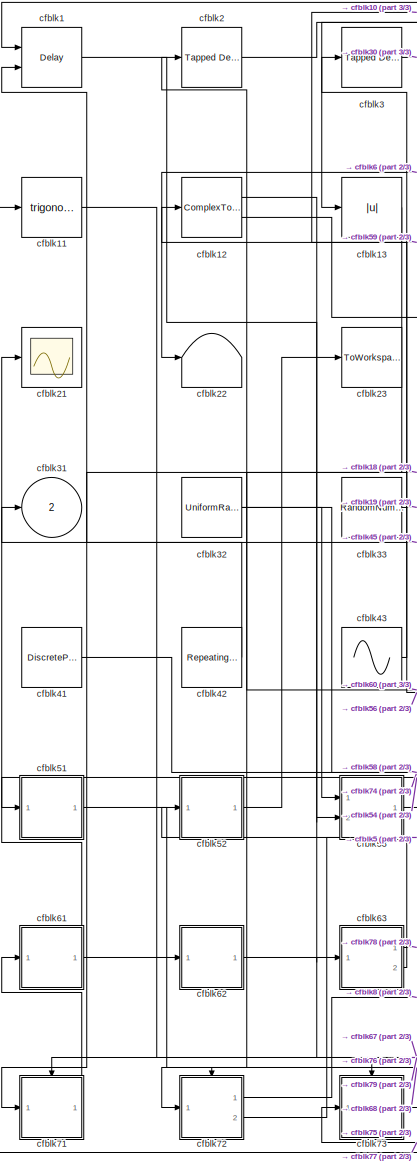
[diagram: root canvas - part 1/3, left side, full height]
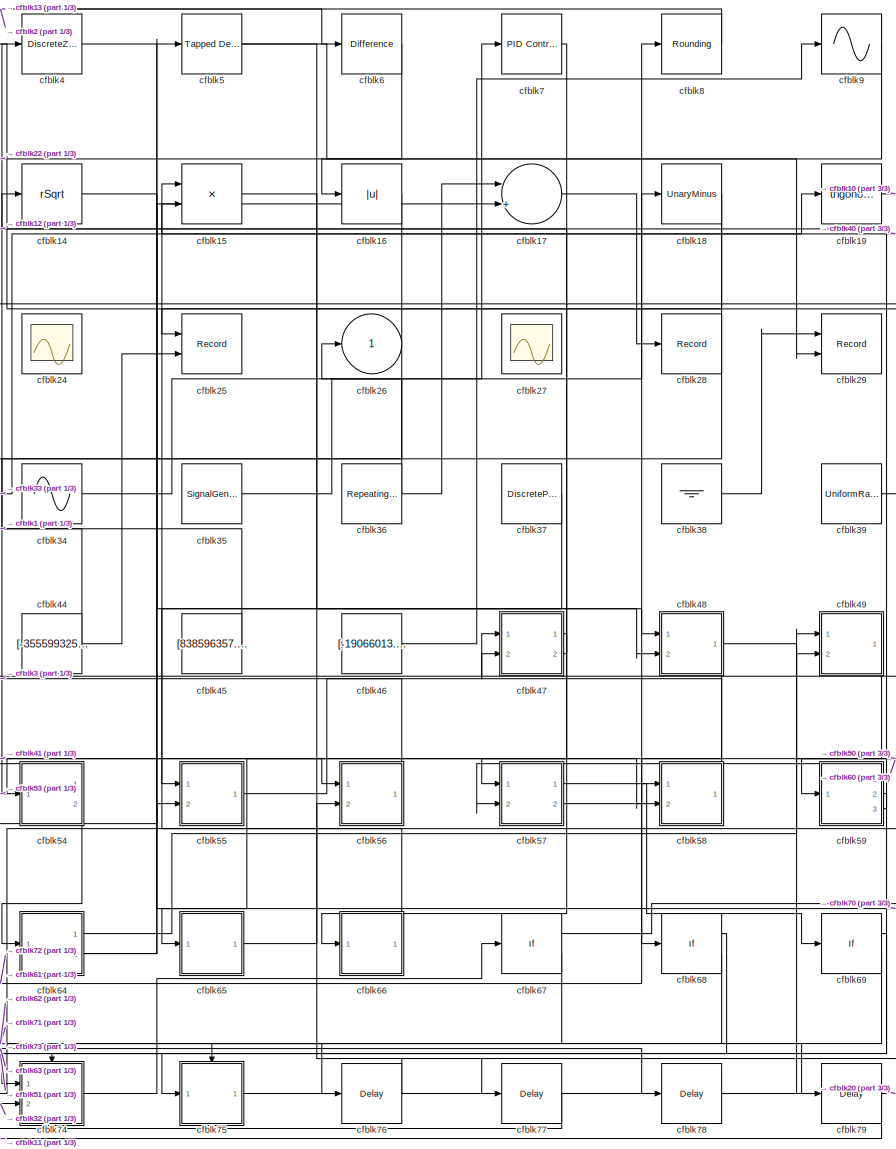
[diagram: root canvas - part 2/3, center side, full height]
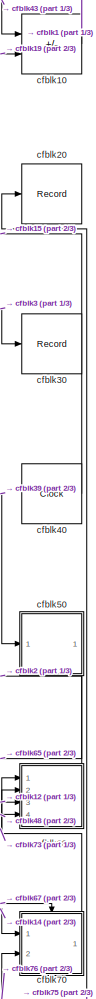
[diagram: root canvas - part 3/3, right side, full height]
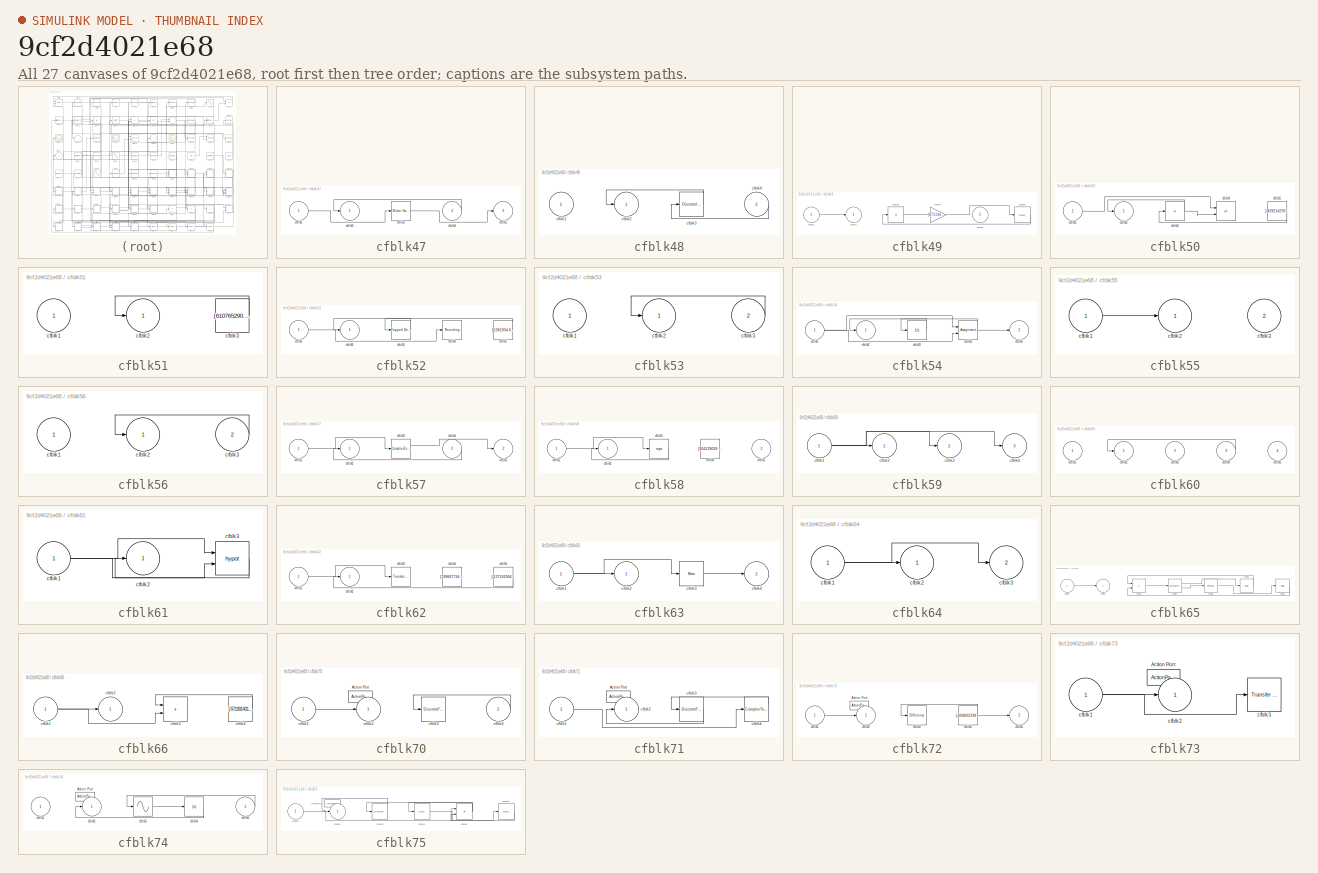
[diagram: thumbnail index - all 27 canvases of the model, root first then tree order]
MODEL slx_9cf2d4021e68
KIND model
CONFIG AbsTol = auto
CONFIG EnableMultiTasking = off
CONFIG FixedStep = auto
CONFIG MaxStep = auto
CONFIG MinStep = auto
CONFIG RelTol = 1e-3
CONFIG SampleTimeConstraint = Unconstrained
CONFIG SolverName = VariableStepAuto
CONFIG StartTime = 0.0
CONFIG StopTime = 10.0
BLOCK [Delay] cfblk1
  DelayLengthSource = Input port
  InputPortMap = u0,p1
  Ports = [2, 1]
  SampleTime = 1
BLOCK [Sum] cfblk10
  IconShape = rectangular
  Inputs = -+
  Ports = [2, 1]
BLOCK [Trigonometry] cfblk11
  Ports = [1, 1]
BLOCK [ComplexToMagnitudeAngle] cfblk12
  Ports = [1, 2]
BLOCK [Abs] cfblk13
  SaturateOnIntegerOverflow = off
BLOCK [Sqrt] cfblk14
  AlgorithmType = Newton-Raphson
  Operator = rSqrt
BLOCK [Product] cfblk15
  Ports = [2, 1]
BLOCK [Abs] cfblk16
  SaturateOnIntegerOverflow = off
BLOCK [Sum] cfblk17
  Inputs = |++
  Ports = [2, 1]
BLOCK [UnaryMinus] cfblk18
BLOCK [Trigonometry] cfblk19
  Ports = [1, 1]
BLOCK [Reference] cfblk2  REF=simulink/Discrete/Tapped Delay
  Ports = [1, 1]
  SourceBlock = simulink/Discrete/Tapped Delay
  SourceProductBaseCode = SL
  SourceType = Tapped Delay Line
BLOCK [Record] cfblk20
  FileSettingsInternal = {"entries":[{"content":{"excelSettings":{"content":{},"type":"Streamout.ExcelSettings"}},"type":"Streamout.FileSettingStorage","uuid":"c47b721e-c502-495e-bc2c-23fa9a237a94"}],"packageUris":["http://schema.mathworks.com/mf0/streamout_blocks/R2020a"],"version":"1.0"}
  Ports = [1]
  SignalsInternal = {"entries":[{"content":{"signals":[{"content":{"blockPath":["sampleModel152/cfblk20"],"channel":[],"dimensions":[1],"domain":"sampleModel152/cfblk20","lineColor":"#d95319","plots":[1],"port":1,"sid":[""],"signalID":5681,"signalName":"cfblk75"},"type":"RecordBlkView.Signal","uuid":"6b29897d-ef07-458a-9e41-9e53abe459e1"}]},"type":"RecordBlkView.InputSignals","uuid":"85f72081-060a-407c-acbf-49079db1e...<+97ch>
  VisualizationBindings = {"sparklinesplugin":{"info":[{"bindingParametersList":[],"subplotID":1}]}}
BLOCK [Scope] cfblk21
  Floating = off
  NumInputPorts = 1
  Ports = [1]
BLOCK [Terminator] cfblk22
BLOCK [ToWorkspace] cfblk23
  FixptAsFi = on
  MaxDataPoints = inf
  Ports = [1]
  SampleTime = -1
  SaveFormat = Timeseries
  VariableName = hyimlsv
BLOCK [Scope] cfblk24
  Floating = on
  NumInputPorts = 1
  Ports = []
BLOCK [Record] cfblk25
  CompatibilityTag = XY
  FileSettingsInternal = {"entries":[{"content":{"excelSettings":{"content":{},"type":"Streamout.ExcelSettings"}},"type":"Streamout.FileSettingStorage","uuid":"8546e93f-715b-4185-8f36-8e6ff5d08789"}],"packageUris":["http://schema.mathworks.com/mf0/streamout_blocks/R2020a"],"version":"1.0"}
  Layout = [1 1]
  Ports = [2]
  SignalsInternal = {"entries":[{"content":{"signals":[{"content":{"blockPath":["sampleModel152/cfblk25"],"channel":[],"dimensions":[1],"domain":"sampleModel152/cfblk25","lineColor":"#a2142f","plots":[1],"port":1,"sid":[""],"signalID":5685,"signalName":"cfblk18"},"type":"RecordBlkView.Signal","uuid":"05ec31d6-fd38-4270-a47a-7922b4318d2e"},{"content":{"blockPath":["sampleModel152/cfblk25"],"channel":[],"dimensions":[1...<+383ch>
  VisualizationBindings = {"xyplotplugin":{"info":[{"series":[{"bindingParametersList":[{"parameter":"X-Axis","signalID":5685,"signalName":"cfblk18"},{"parameter":"Y-Axis","signalID":5689,"signalName":"cfblk44"}],"seriesID":2906}],"subplotID":1}]}}
BLOCK [Outport] cfblk26
BLOCK [Scope] cfblk27
  Floating = on
  NumInputPorts = 1
  Ports = []
BLOCK [Record] cfblk28
  FileSettingsInternal = {"entries":[{"content":{"excelSettings":{"content":{},"type":"Streamout.ExcelSettings"}},"type":"Streamout.FileSettingStorage","uuid":"6cacab10-1b5e-4cec-8765-deae7b2bdf96"}],"packageUris":["http://schema.mathworks.com/mf0/streamout_blocks/R2020a"],"version":"1.0"}
  Ports = [1]
  SignalsInternal = {"entries":[{"content":{"signals":[{"content":{"blockPath":["sampleModel152/cfblk28"],"channel":[],"dimensions":[1],"domain":"sampleModel152/cfblk28","lineColor":"#77ac30","plots":[1],"port":1,"sid":[""],"signalID":5693,"signalName":"cfblk17"},"type":"RecordBlkView.Signal","uuid":"22faa192-de3f-4ae5-a89c-dffad7db9273"}]},"type":"RecordBlkView.InputSignals","uuid":"bcc17e78-91b2-4c48-9e64-284fcdbe6...<+97ch>
  VisualizationBindings = {"sparklinesplugin":{"info":[{"bindingParametersList":[],"subplotID":1}]}}
BLOCK [Record] cfblk29
  CompatibilityTag = XY
  FileSettingsInternal = {"entries":[{"content":{"excelSettings":{"content":{},"type":"Streamout.ExcelSettings"}},"type":"Streamout.FileSettingStorage","uuid":"857bb119-ee54-4941-9ae6-14d668698a5d"}],"packageUris":["http://schema.mathworks.com/mf0/streamout_blocks/R2020a"],"version":"1.0"}
  Layout = [1 1]
  Ports = [2]
  SignalsInternal = {"entries":[{"content":{"signals":[{"content":{"blockPath":["sampleModel152/cfblk29"],"channel":[],"dimensions":[1],"domain":"sampleModel152/cfblk29","lineColor":"#139fff","plots":[1],"port":2,"sid":[""],"signalID":5697,"signalName":"cfblk5"},"type":"RecordBlkView.Signal","uuid":"1e2b0046-587d-4481-b4ab-f1abe963bb21"},{"content":{"blockPath":["sampleModel152/cfblk29"],"channel":[],"dimensions":[1]...<+382ch>
  VisualizationBindings = {"xyplotplugin":{"info":[{"series":[{"bindingParametersList":[{"parameter":"X-Axis","signalID":5705,"signalName":"cfblk38"},{"parameter":"Y-Axis","signalID":5697,"signalName":"cfblk5"}],"seriesID":9559}],"subplotID":1}]}}
BLOCK [Reference] cfblk3  REF=simulink/Discrete/Tapped Delay
  Ports = [1, 1]
  SourceBlock = simulink/Discrete/Tapped Delay
  SourceProductBaseCode = SL
  SourceType = Tapped Delay Line
BLOCK [Record] cfblk30
  FileSettingsInternal = {"entries":[{"content":{"excelSettings":{"content":{},"type":"Streamout.ExcelSettings"}},"type":"Streamout.FileSettingStorage","uuid":"625a1501-f71e-49e9-9740-3205468b7647"}],"packageUris":["http://schema.mathworks.com/mf0/streamout_blocks/R2020a"],"version":"1.0"}
  Ports = [1]
  SignalsInternal = {"entries":[{"content":{"signals":[{"content":{"blockPath":["sampleModel152/cfblk30"],"channel":[],"dimensions":[1],"domain":"sampleModel152/cfblk30","lineColor":"#a2142f","plots":[1],"port":1,"sid":[""],"signalID":5701,"signalName":"cfblk3"},"type":"RecordBlkView.Signal","uuid":"0052e0c4-d6db-45c4-b4ee-3624ae9909da"}]},"type":"RecordBlkView.InputSignals","uuid":"7832ecd4-22f0-4a63-9437-63c94ca3da...<+96ch>
  VisualizationBindings = {"sparklinesplugin":{"info":[{"bindingParametersList":[],"subplotID":1}]}}
BLOCK [Outport] cfblk31
  Port = 2
BLOCK [UniformRandomNumber] cfblk32
  Maximum = [2308667735.973821]
  Minimum = [-5126869105.594875]
  SampleTime = 0.1
  Seed = [47372116.000000]
BLOCK [RandomNumber] cfblk33
  Mean = [4779.321387]
  SampleTime = 0.1
  Seed = [216975092.000000]
  Variance = [11400.363844]
BLOCK [Sin] cfblk34
  Amplitude = [343828945.107933]
  Bias = [720499371.411561]
  Ports = [0, 1]
  SampleTime = 0
BLOCK [SignalGenerator] cfblk35
  Amplitude = [-851904995.807157]
  Ports = [0, 1]
  WaveForm = square
BLOCK [Reference] cfblk36  REF=simulink/Sources/Repeating
Sequence
Stair
  Ports = [0, 1]
  SourceBlock = simulink/Sources/Repeating\nSequence\nStair
  SourceProductBaseCode = SL
  SourceType = Repeating Sequence Stair
BLOCK [DiscretePulseGenerator] cfblk37
  Amplitude = [445116671.729583]
  Period = [66463313.529924]
  PhaseDelay = [3.000000]
  Ports = [0, 1]
  PulseType = Time based
  PulseWidth = 5
BLOCK [Ground] cfblk38
BLOCK [UniformRandomNumber] cfblk39
  Maximum = [8379573596.915171]
  Minimum = [-1141066484.015148]
  SampleTime = 0.1
  Seed = [96492900.000000]
BLOCK [DiscreteZeroPole] cfblk4
  Gain = 1
  Poles = [0 0.5]
BLOCK [Clock] cfblk40
BLOCK [DiscretePulseGenerator] cfblk41
  Amplitude = [-644647574.954051]
  Period = [6532110.493789]
  PhaseDelay = [6.000000]
  Ports = [0, 1]
  PulseType = Time based
  PulseWidth = 5
BLOCK [Reference] cfblk42  REF=simulink/Sources/Repeating
Sequence
Interpolated
  Ports = [0, 1]
  SourceBlock = simulink/Sources/Repeating\nSequence\nInterpolated
  SourceProductBaseCode = SL
  SourceType = Repeating Sequence Interpolated
BLOCK [Sin] cfblk43
  Amplitude = [431734842.538580]
  Bias = [-356012344.991995]
  Ports = [0, 1]
  SampleTime = 0
BLOCK [Constant] cfblk44
  SampleTime = 1
  Value = [-355599325.295961]
BLOCK [Constant] cfblk45
  SampleTime = 1
  Value = [838596357.160332]
BLOCK [Constant] cfblk46
  SampleTime = 1
  Value = [-19066013.999276]
BLOCK [SubSystem] cfblk47
  Ports = [2, 2]
  RequestExecContextInheritance = off
BLOCK [Inport] cfblk47/cfblk1
BLOCK [Outport] cfblk47/cfblk2
BLOCK [Reference] cfblk47/cfblk3  REF=simulink/Math
Operations/Slider
Gain
  Ports = [1, 1]
  SourceBlock = simulink/Math\nOperations/Slider\nGain
  SourceProductBaseCode = SL
  SourceType = Slider Gain
BLOCK [Inport] cfblk47/cfblk4
  Port = 2
BLOCK [Outport] cfblk47/cfblk5
  Port = 2
BLOCK [SubSystem] cfblk48
  Ports = [2, 1]
  RequestExecContextInheritance = off
BLOCK [Inport] cfblk48/cfblk1
BLOCK [Outport] cfblk48/cfblk2
BLOCK [DiscreteIntegrator] cfblk48/cfblk3
  ICPrevOutput = DiscIntNeverNeededParam
  ICPrevScaledInput = DiscIntNeverNeededParam
  InitialConditionSetting = Auto
  Ports = [1, 1]
BLOCK [Inport] cfblk48/cfblk4
  Port = 2
BLOCK [SubSystem] cfblk49
  Ports = [2, 1]
  RequestExecContextInheritance = off
BLOCK [Inport] cfblk49/cfblk1
BLOCK [Outport] cfblk49/cfblk2
BLOCK [Product] cfblk49/cfblk3
  Inputs = *
  Ports = [1, 1]
BLOCK [Gain] cfblk49/cfblk4
  Gain = [171144753.575778]
BLOCK [Inport] cfblk49/cfblk5
  Port = 2
BLOCK [Delay] cfblk49/cfblk6
  InputPortMap = u0
  Ports = [1, 1]
  SampleTime = 1
BLOCK [Reference] cfblk5  REF=simulink/Discrete/Tapped Delay
  Ports = [1, 1]
  SourceBlock = simulink/Discrete/Tapped Delay
  SourceProductBaseCode = SL
  SourceType = Tapped Delay Line
BLOCK [SubSystem] cfblk50
  Ports = [1, 1]
  RequestExecContextInheritance = off
BLOCK [Inport] cfblk50/cfblk1
BLOCK [Outport] cfblk50/cfblk2
BLOCK [Product] cfblk50/cfblk3
  Inputs = *
  Ports = [1, 1]
BLOCK [Sum] cfblk50/cfblk4
  IconShape = rectangular
  Inputs = +-
  Ports = [2, 1]
BLOCK [Constant] cfblk50/cfblk5
  SampleTime = 1
  Value = [-429214276.909628]
BLOCK [SubSystem] cfblk51
  Ports = [1, 1]
  RequestExecContextInheritance = off
BLOCK [Inport] cfblk51/cfblk1
BLOCK [Outport] cfblk51/cfblk2
BLOCK [Constant] cfblk51/cfblk3
  SampleTime = 1
  Value = [610765290.185896]
BLOCK [SubSystem] cfblk52
  Ports = [1, 1]
  RequestExecContextInheritance = off
BLOCK [Inport] cfblk52/cfblk1
BLOCK [Outport] cfblk52/cfblk2
BLOCK [Reference] cfblk52/cfblk3  REF=simulink/Discrete/Tapped Delay
  Ports = [1, 1]
  SourceBlock = simulink/Discrete/Tapped Delay
  SourceProductBaseCode = SL
  SourceType = Tapped Delay Line
BLOCK [Rounding] cfblk52/cfblk4
BLOCK [Constant] cfblk52/cfblk5
  SampleTime = 1
  Value = [-1361934.620793]
BLOCK [SubSystem] cfblk53
  Ports = [2, 1]
  RequestExecContextInheritance = off
BLOCK [Inport] cfblk53/cfblk1
BLOCK [Outport] cfblk53/cfblk2
BLOCK [Inport] cfblk53/cfblk3
  Port = 2
BLOCK [SubSystem] cfblk54
  Ports = [1, 2]
  RequestExecContextInheritance = off
BLOCK [Inport] cfblk54/cfblk1
BLOCK [Outport] cfblk54/cfblk2
BLOCK [UnitDelay] cfblk54/cfblk3
  HasFrameUpgradeWarning = on
BLOCK [Assignment] cfblk54/cfblk4
  DiagnosticForDimensions = Warning
  IndexOptions = Index vector (dialog)
  Indices = 1
  OutputSizes = 1
  Ports = [2, 1]
BLOCK [Outport] cfblk54/cfblk5
  Port = 2
BLOCK [SubSystem] cfblk55
  Ports = [2, 1]
  RequestExecContextInheritance = off
BLOCK [Inport] cfblk55/cfblk1
BLOCK [Outport] cfblk55/cfblk2
BLOCK [Inport] cfblk55/cfblk3
  Port = 2
BLOCK [SubSystem] cfblk56
  Ports = [2, 1]
  RequestExecContextInheritance = off
BLOCK [Inport] cfblk56/cfblk1
BLOCK [Outport] cfblk56/cfblk2
BLOCK [Inport] cfblk56/cfblk3
  Port = 2
BLOCK [SubSystem] cfblk57
  Ports = [2, 2]
  RequestExecContextInheritance = off
BLOCK [Inport] cfblk57/cfblk1
BLOCK [Outport] cfblk57/cfblk2
BLOCK [ComplexToRealImag] cfblk57/cfblk3
  Ports = [1, 2]
BLOCK [Inport] cfblk57/cfblk4
  Port = 2
BLOCK [Outport] cfblk57/cfblk5
  Port = 2
BLOCK [SubSystem] cfblk58
  Ports = [2, 1]
  RequestExecContextInheritance = off
BLOCK [Inport] cfblk58/cfblk1
BLOCK [Outport] cfblk58/cfblk2
BLOCK [Sqrt] cfblk58/cfblk3
BLOCK [Constant] cfblk58/cfblk4
  SampleTime = 1
  Value = [304129029.836607]
BLOCK [Inport] cfblk58/cfblk5
  Port = 2
BLOCK [SubSystem] cfblk59
  Ports = [1, 3]
  RequestExecContextInheritance = off
BLOCK [Inport] cfblk59/cfblk1
BLOCK [Outport] cfblk59/cfblk2
BLOCK [Outport] cfblk59/cfblk3
  Port = 2
BLOCK [Outport] cfblk59/cfblk4
  Port = 3
BLOCK [Reference] cfblk6  REF=simulink/Discrete/Difference
  Ports = [1, 1]
  SourceBlock = simulink/Discrete/Difference
  SourceProductBaseCode = SL
  SourceType = Difference
BLOCK [SubSystem] cfblk60
  Ports = [4, 1]
  RequestExecContextInheritance = off
BLOCK [Inport] cfblk60/cfblk1
BLOCK [Outport] cfblk60/cfblk2
BLOCK [Inport] cfblk60/cfblk3
  Port = 2
BLOCK [Inport] cfblk60/cfblk4
  Port = 3
BLOCK [Inport] cfblk60/cfblk5
  Port = 4
BLOCK [SubSystem] cfblk61
  Ports = [1, 1]
  RequestExecContextInheritance = off
BLOCK [Inport] cfblk61/cfblk1
BLOCK [Outport] cfblk61/cfblk2
BLOCK [Math] cfblk61/cfblk3
  Operator = hypot
  Ports = [2, 1]
BLOCK [SubSystem] cfblk62
  Ports = [1, 1]
  RequestExecContextInheritance = off
BLOCK [Inport] cfblk62/cfblk1
BLOCK [Outport] cfblk62/cfblk2
BLOCK [Reference] cfblk62/cfblk3  REF=simulink/Discrete/Transfer Fcn
Real Zero
  Ports = [1, 1]
  SourceBlock = simulink/Discrete/Transfer Fcn\nReal Zero
  SourceProductBaseCode = SL
  SourceType = Transfer Fcn Real Zero
BLOCK [Constant] cfblk62/cfblk4
  SampleTime = 1
  Value = [749667734.627183]
BLOCK [Constant] cfblk62/cfblk5
  SampleTime = 1
  Value = [-127191064.731779]
BLOCK [SubSystem] cfblk63
  Ports = [1, 2]
  RequestExecContextInheritance = off
BLOCK [Inport] cfblk63/cfblk1
BLOCK [Outport] cfblk63/cfblk2
BLOCK [Bias] cfblk63/cfblk3
  Bias = [130101413.322657]
  SaturateOnIntegerOverflow = off
BLOCK [Outport] cfblk63/cfblk4
  Port = 2
BLOCK [SubSystem] cfblk64
  Ports = [1, 2]
  RequestExecContextInheritance = off
BLOCK [Inport] cfblk64/cfblk1
BLOCK [Outport] cfblk64/cfblk2
BLOCK [Outport] cfblk64/cfblk3
  Port = 2
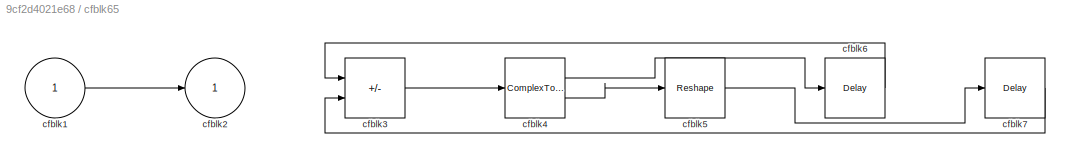
BLOCK [SubSystem] cfblk65
  Ports = [1, 1]
  RequestExecContextInheritance = off
BLOCK [Inport] cfblk65/cfblk1
BLOCK [Outport] cfblk65/cfblk2
BLOCK [Sum] cfblk65/cfblk3
  IconShape = rectangular
  Inputs = +-
  Ports = [2, 1]
BLOCK [ComplexToRealImag] cfblk65/cfblk4
  Ports = [1, 2]
BLOCK [Reshape] cfblk65/cfblk5
  Ports = [1, 1]
BLOCK [Delay] cfblk65/cfblk6
  InputPortMap = u0
  Ports = [1, 1]
  SampleTime = 1
BLOCK [Delay] cfblk65/cfblk7
  InputPortMap = u0
  Ports = [1, 1]
  SampleTime = 1
BLOCK [SubSystem] cfblk66
  Ports = [1, 1]
  RequestExecContextInheritance = off
BLOCK [Inport] cfblk66/cfblk1
BLOCK [Outport] cfblk66/cfblk2
BLOCK [Sum] cfblk66/cfblk3
  IconShape = rectangular
  Ports = [2, 1]
BLOCK [Constant] cfblk66/cfblk4
  SampleTime = 1
  Value = [-571991401.069180]
BLOCK [If] cfblk67
  IfExpression = u1 >= 0
  Ports = [1, 2]
  SampleTime = 1
BLOCK [If] cfblk68
  IfExpression = u1 >= 0
  Ports = [1, 2]
  SampleTime = 1
BLOCK [If] cfblk69
  IfExpression = u1 >= 0
  Ports = [1, 2]
  SampleTime = 1
BLOCK [Reference] cfblk7  REF=slpidlib/PID Controller
  Ports = [1, 1]
  SourceBlock = slpidlib/PID Controller
  SourceProductBaseCode = SL
  SourceType = PID 1dof
BLOCK [SubSystem] cfblk70
  Ports = [2, 1, 0, 0, 0, 0, 0, 1]
  RequestExecContextInheritance = off
  TreatAsAtomicUnit = on
BLOCK [ActionPort] cfblk70/Action Port
  ActionPortLabel = if(u1 >= 0)
BLOCK [Inport] cfblk70/cfblk1
BLOCK [Outport] cfblk70/cfblk2
BLOCK [DiscreteFir] cfblk70/cfblk3
  InputPortMap = u0
  OutputPortMap = o0
  Ports = [1, 1]
BLOCK [Inport] cfblk70/cfblk4
  Port = 2
BLOCK [SubSystem] cfblk71
  Ports = [1, 1, 0, 0, 0, 0, 0, 1]
  RequestExecContextInheritance = off
  TreatAsAtomicUnit = on
BLOCK [ActionPort] cfblk71/Action Port
  ActionPortLabel = else
BLOCK [Inport] cfblk71/cfblk1
BLOCK [Outport] cfblk71/cfblk2
BLOCK [DiscreteFilter] cfblk71/cfblk3
  InputPortMap = u0
  Ports = [1, 1]
BLOCK [ComplexToMagnitudeAngle] cfblk71/cfblk4
  Ports = [1, 2]
BLOCK [SubSystem] cfblk72
  Ports = [1, 2, 0, 0, 0, 0, 0, 1]
  RequestExecContextInheritance = off
  TreatAsAtomicUnit = on
BLOCK [ActionPort] cfblk72/Action Port
  ActionPortLabel = if(u1 >= 0)
BLOCK [Inport] cfblk72/cfblk1
BLOCK [Outport] cfblk72/cfblk2
BLOCK [Reference] cfblk72/cfblk3  REF=simulink/Discrete/Difference
  Ports = [1, 1]
  SourceBlock = simulink/Discrete/Difference
  SourceProductBaseCode = SL
  SourceType = Difference
BLOCK [Constant] cfblk72/cfblk4
  SampleTime = 1
  Value = [-694692338.764272]
BLOCK [Outport] cfblk72/cfblk5
  Port = 2
BLOCK [SubSystem] cfblk73
  Ports = [1, 1, 0, 0, 0, 0, 0, 1]
  RequestExecContextInheritance = off
  TreatAsAtomicUnit = on
BLOCK [ActionPort] cfblk73/Action Port
  ActionPortLabel = else
BLOCK [Inport] cfblk73/cfblk1
BLOCK [Outport] cfblk73/cfblk2
BLOCK [Reference] cfblk73/cfblk3  REF=simulink/Discrete/Transfer Fcn
Real Zero
  Ports = [1, 1]
  SourceBlock = simulink/Discrete/Transfer Fcn\nReal Zero
  SourceProductBaseCode = SL
  SourceType = Transfer Fcn Real Zero
BLOCK [SubSystem] cfblk74
  Ports = [2, 1, 0, 0, 0, 0, 0, 1]
  RequestExecContextInheritance = off
  TreatAsAtomicUnit = on
BLOCK [ActionPort] cfblk74/Action Port
  ActionPortLabel = if(u1 >= 0)
BLOCK [Inport] cfblk74/cfblk1
BLOCK [Outport] cfblk74/cfblk2
BLOCK [Sin] cfblk74/cfblk3
  Ports = [1, 1]
  SampleTime = 0
  TimeSource = Use external signal
BLOCK [Abs] cfblk74/cfblk4
  SaturateOnIntegerOverflow = off
BLOCK [Inport] cfblk74/cfblk5
  Port = 2
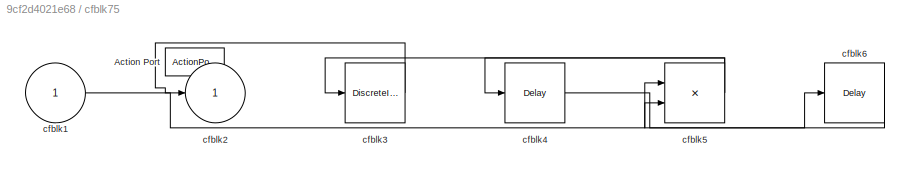
BLOCK [SubSystem] cfblk75
  Ports = [1, 1, 0, 0, 0, 0, 0, 1]
  RequestExecContextInheritance = off
  TreatAsAtomicUnit = on
BLOCK [ActionPort] cfblk75/Action Port
  ActionPortLabel = else
BLOCK [Inport] cfblk75/cfblk1
BLOCK [Outport] cfblk75/cfblk2
BLOCK [DiscreteIntegrator] cfblk75/cfblk3
  ICPrevOutput = DiscIntNeverNeededParam
  ICPrevScaledInput = DiscIntNeverNeededParam
  InitialConditionSetting = Auto
  Ports = [1, 1]
  SampleTime = -1
BLOCK [Delay] cfblk75/cfblk4
  InputPortMap = u0
  Ports = [1, 1]
BLOCK [Product] cfblk75/cfblk5
  Inputs = **
  Ports = [2, 1]
BLOCK [Delay] cfblk75/cfblk6
  InputPortMap = u0
  Ports = [1, 1]
BLOCK [Delay] cfblk76
  InputPortMap = u0
  Ports = [1, 1]
  SampleTime = 1
BLOCK [Delay] cfblk77
  InputPortMap = u0
  Ports = [1, 1]
  SampleTime = 1
BLOCK [Delay] cfblk78
  InputPortMap = u0
  Ports = [1, 1]
  SampleTime = 1
BLOCK [Delay] cfblk79
  InputPortMap = u0
  Ports = [1, 1]
  SampleTime = 1
BLOCK [Rounding] cfblk8
BLOCK [Sin] cfblk9
  Ports = [1, 1]
  SampleTime = 0
  TimeSource = Use external signal
LINE cfblk10:1 -> cfblk1:1
LINE cfblk11:1 -> cfblk62:1
LINE cfblk12:1 -> cfblk63:1
LINE cfblk12:2 -> cfblk60:3
LINE cfblk13:1 -> cfblk71:1
LINE cfblk14:1 -> cfblk70:1
LINE cfblk15:1 -> cfblk48:2
LINE cfblk16:1 -> cfblk54:1
LINE cfblk17:1 -> cfblk28:1
NET cfblk18:1 -> cfblk25:1, cfblk72:1
LINE cfblk19:1 -> cfblk10:2
LINE cfblk1:1 -> cfblk53:2
LINE cfblk2:1 -> cfblk6:1
NET cfblk32:1 -> cfblk53:1, cfblk74:2
LINE cfblk33:1 -> cfblk19:1
LINE cfblk34:1 -> cfblk7:1
LINE cfblk35:1 -> cfblk18:1
NET cfblk36:1 -> cfblk17:1, cfblk26:1
LINE cfblk37:1 -> cfblk55:1
LINE cfblk38:1 -> cfblk29:1
LINE cfblk39:1 -> cfblk50:1
LINE cfblk3:1 -> cfblk30:1
LINE cfblk40:1 -> cfblk15:2
LINE cfblk41:1 -> cfblk58:2
LINE cfblk42:1 -> cfblk21:1
LINE cfblk43:1 -> cfblk10:1
NET cfblk44:1 -> cfblk25:2, cfblk4:1
LINE cfblk45:1 -> cfblk1:2
LINE cfblk46:1 -> cfblk9:1
LINE cfblk47/cfblk1:1 -> cfblk47/cfblk3:1
LINE cfblk47/cfblk3:1 -> cfblk47/cfblk5:1
LINE cfblk47/cfblk4:1 -> cfblk47/cfblk2:1
LINE cfblk47:1 -> cfblk66:1
LINE cfblk47:2 -> cfblk14:1
LINE cfblk48/cfblk3:1 -> cfblk48/cfblk2:1
LINE cfblk48/cfblk4:1 -> cfblk48/cfblk3:1
NET cfblk48:1 -> cfblk60:4, cfblk68:1
LINE cfblk49/cfblk1:1 -> cfblk49/cfblk2:1
LINE cfblk49/cfblk3:1 -> cfblk49/cfblk4:1
LINE cfblk49/cfblk4:1 -> cfblk49/cfblk6:1
LINE cfblk49/cfblk6:1 -> cfblk49/cfblk3:1
LINE cfblk49:1 -> cfblk59:1
LINE cfblk4:1 -> cfblk48:1
LINE cfblk50/cfblk1:1 -> cfblk50/cfblk4:1
NET cfblk50/cfblk3:1 -> cfblk50/cfblk2:1, cfblk50/cfblk4:2
LINE cfblk50/cfblk5:1 -> cfblk50/cfblk3:1
LINE cfblk50:1 -> cfblk65:1
LINE cfblk51/cfblk3:1 -> cfblk51/cfblk2:1
LINE cfblk51:1 -> cfblk75:1
LINE cfblk52/cfblk1:1 -> cfblk52/cfblk4:1
LINE cfblk52/cfblk3:1 -> cfblk52/cfblk2:1
LINE cfblk52/cfblk5:1 -> cfblk52/cfblk3:1
LINE cfblk52:1 -> cfblk23:1
LINE cfblk53/cfblk3:1 -> cfblk53/cfblk2:1
LINE cfblk53:1 -> cfblk56:1
NET cfblk54/cfblk1:1 -> cfblk54/cfblk4:1, cfblk54/cfblk4:2
LINE cfblk54/cfblk3:1 -> cfblk54/cfblk2:1
NET cfblk54/cfblk4:1 -> cfblk54/cfblk3:1, cfblk54/cfblk5:1
LINE cfblk54:1 -> cfblk51:1
LINE cfblk54:2 -> cfblk64:1
LINE cfblk55/cfblk1:1 -> cfblk55/cfblk2:1
LINE cfblk55:1 -> cfblk47:2
LINE cfblk56/cfblk3:1 -> cfblk56/cfblk2:1
LINE cfblk56:1 -> cfblk3:1
LINE cfblk57/cfblk1:1 -> cfblk57/cfblk3:1
LINE cfblk57/cfblk3:1 -> cfblk57/cfblk5:1
LINE cfblk57/cfblk4:1 -> cfblk57/cfblk2:1
LINE cfblk57:1 -> cfblk69:1
LINE cfblk57:2 -> cfblk58:1
LINE cfblk58/cfblk1:1 -> cfblk58/cfblk3:1
LINE cfblk58/cfblk3:1 -> cfblk58/cfblk2:1
LINE cfblk58:1 -> cfblk47:1
NET cfblk59/cfblk1:1 -> cfblk59/cfblk2:1, cfblk59/cfblk3:1, cfblk59/cfblk4:1
LINE cfblk59:1 -> cfblk57:2
LINE cfblk59:2 -> cfblk74:1
LINE cfblk59:3 -> cfblk12:1
NET cfblk5:1 -> cfblk29:2, cfblk77:1
LINE cfblk60/cfblk4:1 -> cfblk60/cfblk2:1
LINE cfblk60:1 -> cfblk2:1
NET cfblk61/cfblk1:1 -> cfblk61/cfblk3:1, cfblk61/cfblk3:2
LINE cfblk61/cfblk3:1 -> cfblk61/cfblk2:1
NET cfblk61:1 -> cfblk31:1, cfblk76:1
LINE cfblk62/cfblk1:1 -> cfblk62/cfblk3:1
LINE cfblk62/cfblk5:1 -> cfblk62/cfblk2:1
LINE cfblk62:1 -> cfblk79:1
NET cfblk63/cfblk1:1 -> cfblk63/cfblk2:1, cfblk63/cfblk3:1
LINE cfblk63/cfblk3:1 -> cfblk63/cfblk4:1
LINE cfblk63:1 -> cfblk78:1
LINE cfblk63:2 -> cfblk52:1
NET cfblk64/cfblk1:1 -> cfblk64/cfblk2:1, cfblk64/cfblk3:1
LINE cfblk64:1 -> cfblk49:2
NET cfblk64:2 -> cfblk17:2, cfblk55:2
LINE cfblk65/cfblk1:1 -> cfblk65/cfblk2:1
LINE cfblk65/cfblk3:1 -> cfblk65/cfblk4:1
LINE cfblk65/cfblk4:1 -> cfblk65/cfblk6:1
LINE cfblk65/cfblk4:2 -> cfblk65/cfblk5:1
LINE cfblk65/cfblk5:1 -> cfblk65/cfblk7:1
LINE cfblk65/cfblk6:1 -> cfblk65/cfblk3:1
LINE cfblk65/cfblk7:1 -> cfblk65/cfblk3:2
LINE cfblk65:1 -> cfblk56:2
NET cfblk66/cfblk1:1 -> cfblk66/cfblk2:1, cfblk66/cfblk3:2
LINE cfblk66/cfblk4:1 -> cfblk66/cfblk3:1
LINE cfblk66:1 -> cfblk15:1
LINE cfblk67:1 -> cfblk70:ifaction
LINE cfblk67:2 -> cfblk71:ifaction
LINE cfblk68:1 -> cfblk72:ifaction
LINE cfblk68:2 -> cfblk73:ifaction
LINE cfblk69:1 -> cfblk74:ifaction
LINE cfblk69:2 -> cfblk75:ifaction
LINE cfblk6:1 -> cfblk22:1
LINE cfblk70/cfblk1:1 -> cfblk70/cfblk2:1
LINE cfblk70/cfblk4:1 -> cfblk70/cfblk3:1
LINE cfblk70:1 -> cfblk60:1
LINE cfblk71/cfblk1:1 -> cfblk71/cfblk4:1
LINE cfblk71/cfblk3:1 -> cfblk71/cfblk2:1
LINE cfblk71/cfblk4:1 -> cfblk71/cfblk3:1
LINE cfblk71:1 -> cfblk61:1
LINE cfblk72/cfblk1:1 -> cfblk72/cfblk2:1
NET cfblk72/cfblk4:1 -> cfblk72/cfblk3:1, cfblk72/cfblk5:1
LINE cfblk72:1 -> cfblk8:1
LINE cfblk72:2 -> cfblk5:1
NET cfblk73/cfblk1:1 -> cfblk73/cfblk2:1, cfblk73/cfblk3:1
LINE cfblk73:1 -> cfblk60:2
LINE cfblk74/cfblk3:1 -> cfblk74/cfblk4:1
LINE cfblk74/cfblk4:1 -> cfblk74/cfblk2:1
LINE cfblk74/cfblk5:1 -> cfblk74/cfblk3:1
LINE cfblk74:1 -> cfblk67:1
LINE cfblk75/cfblk1:1 -> cfblk75/cfblk5:1
LINE cfblk75/cfblk3:1 -> cfblk75/cfblk2:1
LINE cfblk75/cfblk4:1 -> cfblk75/cfblk6:1
NET cfblk75/cfblk5:1 -> cfblk75/cfblk3:1, cfblk75/cfblk4:1
LINE cfblk75/cfblk6:1 -> cfblk75/cfblk5:2
LINE cfblk75:1 -> cfblk20:1
LINE cfblk76:1 -> cfblk70:2
LINE cfblk77:1 -> cfblk73:1
LINE cfblk78:1 -> cfblk49:1
LINE cfblk79:1 -> cfblk11:1
LINE cfblk7:1 -> cfblk57:1
LINE cfblk8:1 -> cfblk13:1
LINE cfblk9:1 -> cfblk16:1
note: NET lines group one-source signal fan-out (src -> all destinations, sorted); 1:1 wires keep LINE
